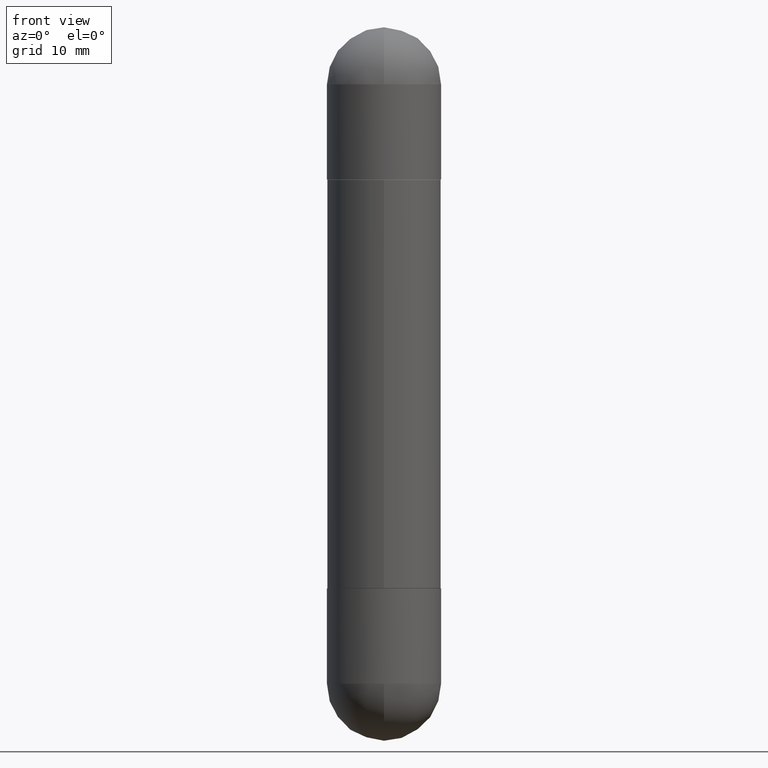
[diagram: clean part render]
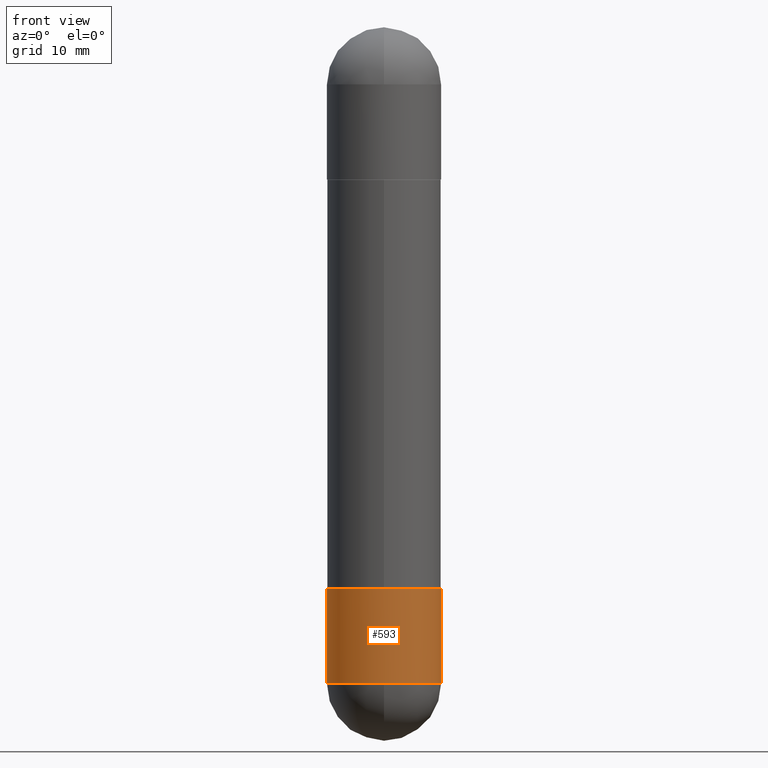
[diagram: same view with one face highlighted and labeled with its STEP entity id]
A machine part, front view. The second image highlights one B-rep face of the part: STEP entity #593.
In plain terms, the highlighted cylindrical surface (partial cylindrical patch) has radius 5.9995 mm, axis along (-0, 0, 1).
Its self-contained STEP definition (entity closure, byte-faithful):
#1 = CIRCLE ( 'NONE', #321, 0.2361999999999999933 ) ;
#29 = DIRECTION ( 'NONE',  ( -2.445468806185136877E-29, 3.491481338843145188E-15, 1.000000000000000000 ) ) ;
#51 = EDGE_CURVE ( 'NONE', #541, #225, #491, .T. ) ;
#76 = CARTESIAN_POINT ( 'NONE',  ( 6.643360558882540179E-29, -9.484958205101285532E-15, -2.716599999999999238 ) ) ;
#84 = CARTESIAN_POINT ( 'NONE',  ( -1.678301941865292496E-15, -0.2362000000000098743, -2.716599999999997905 ) ) ;
#111 = DIRECTION ( 'NONE',  ( -2.445468806185136597E-29, 3.491481338843145583E-15, 1.000000000000000000 ) ) ;
#115 = VERTEX_POINT ( 'NONE', #84 ) ;
#159 = CIRCLE ( 'NONE', #364, 0.2361999999999999933 ) ;
#175 = ORIENTED_EDGE ( 'NONE', *, *, #209, .F. ) ;
#178 = ORIENTED_EDGE ( 'NONE', *, *, #410, .T. ) ;
#209 = EDGE_CURVE ( 'NONE', #260, #541, #542, .T. ) ;
#215 = VECTOR ( 'NONE', #436, 39.37007874015748143 ) ;
#225 = VERTEX_POINT ( 'NONE', #597 ) ;
#239 = AXIS2_PLACEMENT_3D ( 'NONE', #768, #394, #518 ) ;
#247 = CARTESIAN_POINT ( 'NONE',  ( 6.643360558882540179E-29, -9.484958205101285532E-15, -2.716599999999999238 ) ) ;
#260 = VERTEX_POINT ( 'NONE', #476 ) ;
#272 = DIRECTION ( 'NONE',  ( 1.000000000000000000, -6.982962677686265133E-15, 0.000000000000000000 ) ) ;
#299 = DIRECTION ( 'NONE',  ( 1.000000000000000000, -6.982962677686265133E-15, 0.000000000000000000 ) ) ;
#321 = AXIS2_PLACEMENT_3D ( 'NONE', #76, #708, #272 ) ;
#364 = AXIS2_PLACEMENT_3D ( 'NONE', #247, #111, #299 ) ;
#373 = ORIENTED_EDGE ( 'NONE', *, *, #51, .F. ) ;
#387 = CYLINDRICAL_SURFACE ( 'NONE', #588, 0.2361999999999999933 ) ;
#392 = FACE_OUTER_BOUND ( 'NONE', #790, .T. ) ;
#394 = DIRECTION ( 'NONE',  ( -2.445468806185136597E-29, 3.491481338843145583E-15, 1.000000000000000000 ) ) ;
#397 = EDGE_CURVE ( 'NONE', #260, #115, #159, .T. ) ;
#410 = EDGE_CURVE ( 'NONE', #412, #225, #692, .T. ) ;
#412 = VERTEX_POINT ( 'NONE', #689 ) ;
#425 = CARTESIAN_POINT ( 'NONE',  ( 0.2361999999999999933, -1.649375784469496131E-15, 1.151752954443000088E-29 ) ) ;
#436 = DIRECTION ( 'NONE',  ( -2.445468806185136877E-29, 3.491481338843145188E-15, 1.000000000000000000 ) ) ;
#451 = CARTESIAN_POINT ( 'NONE',  ( 0.000000000000000000, 0.000000000000000000, 0.000000000000000000 ) ) ;
#462 = CARTESIAN_POINT ( 'NONE',  ( -0.2361999999999999933, -7.119358161684655967E-15, -2.322899999999999743 ) ) ;
#476 = CARTESIAN_POINT ( 'NONE',  ( -0.2361999999999999933, -7.119358161684659123E-15, -2.716599999999999238 ) ) ;
#491 = CIRCLE ( 'NONE', #239, 0.2361999999999999933 ) ;
#495 = EDGE_CURVE ( 'NONE', #115, #412, #1, .T. ) ;
#517 = DIRECTION ( 'NONE',  ( -2.445468806185136597E-29, 3.491481338843145583E-15, 1.000000000000000000 ) ) ;
#518 = DIRECTION ( 'NONE',  ( 1.000000000000000000, -6.982962677686265133E-15, 0.000000000000000000 ) ) ;
#541 = VERTEX_POINT ( 'NONE', #462 ) ;
#542 = LINE ( 'NONE', #738, #811 ) ;
#553 = ORIENTED_EDGE ( 'NONE', *, *, #495, .T. ) ;
#588 = AXIS2_PLACEMENT_3D ( 'NONE', #451, #517, #774 ) ;
#593 = ADVANCED_FACE ( 'NONE', ( #392 ), #387, .T. ) ;
#597 = CARTESIAN_POINT ( 'NONE',  ( 0.2361999999999999933, -9.759737786468237294E-15, -2.322899999999999743 ) ) ;
#689 = CARTESIAN_POINT ( 'NONE',  ( 0.2361999999999999933, -1.044703588801951204E-14, -2.716599999999999238 ) ) ;
#692 = LINE ( 'NONE', #425, #215 ) ;
#708 = DIRECTION ( 'NONE',  ( -2.445468806185136597E-29, 3.491481338843145583E-15, 1.000000000000000000 ) ) ;
#738 = CARTESIAN_POINT ( 'NONE',  ( -0.2361999999999999933, 1.678301941865356591E-15, -1.161852468318208757E-29 ) ) ;
#746 = ORIENTED_EDGE ( 'NONE', *, *, #397, .T. ) ;
#768 = CARTESIAN_POINT ( 'NONE',  ( 5.680579489887452821E-29, -8.110362001998742346E-15, -2.322899999999999743 ) ) ;
#774 = DIRECTION ( 'NONE',  ( 1.000000000000000000, -6.982962677686266711E-15, 4.876176775795936353E-29 ) ) ;
#790 = EDGE_LOOP ( 'NONE', ( #175, #746, #553, #178, #373 ) ) ;
#811 = VECTOR ( 'NONE', #29, 39.37007874015748143 ) ;